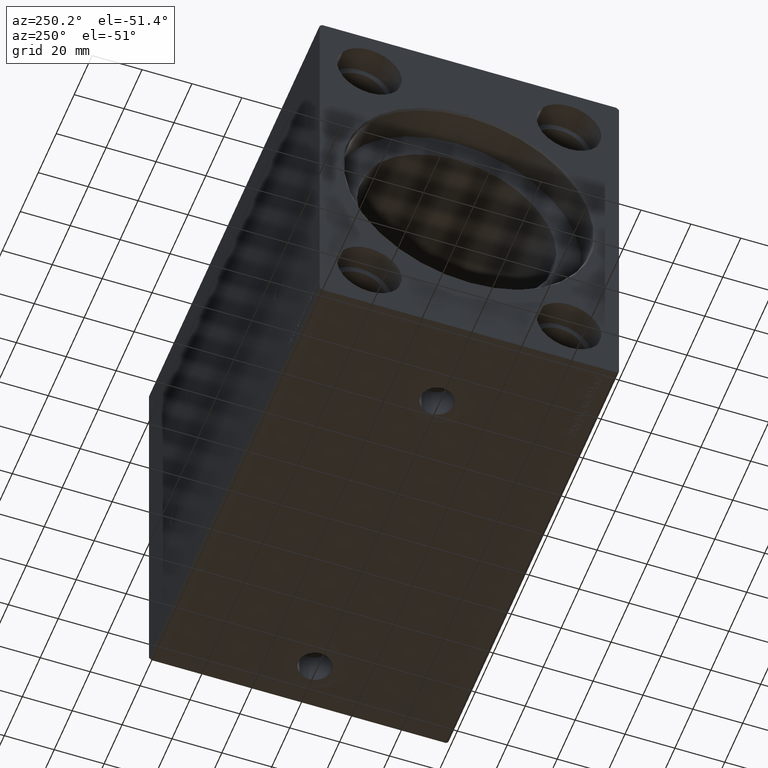
[diagram: clean part render]
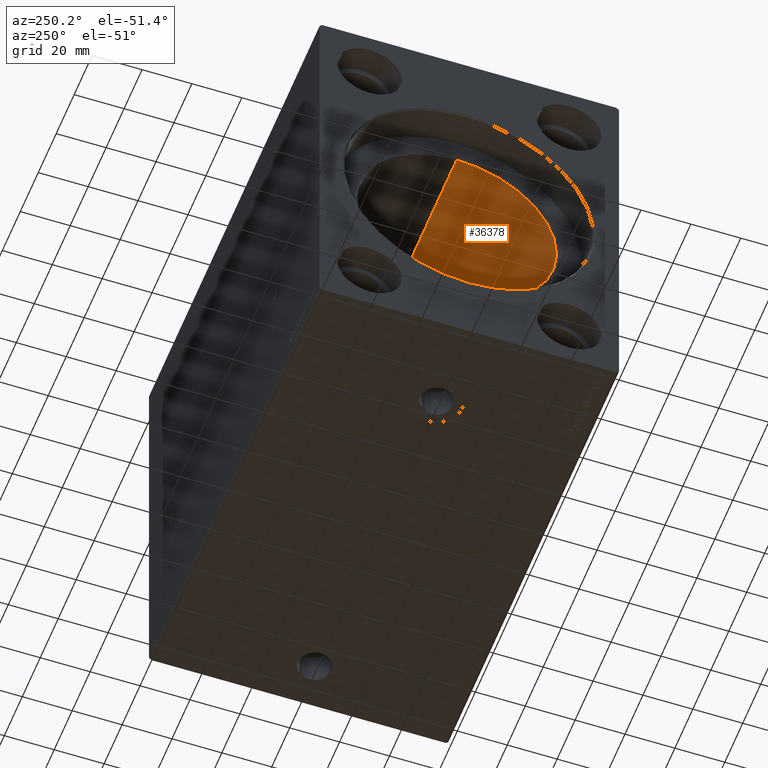
[diagram: same view with one face highlighted and labeled with its STEP entity id]
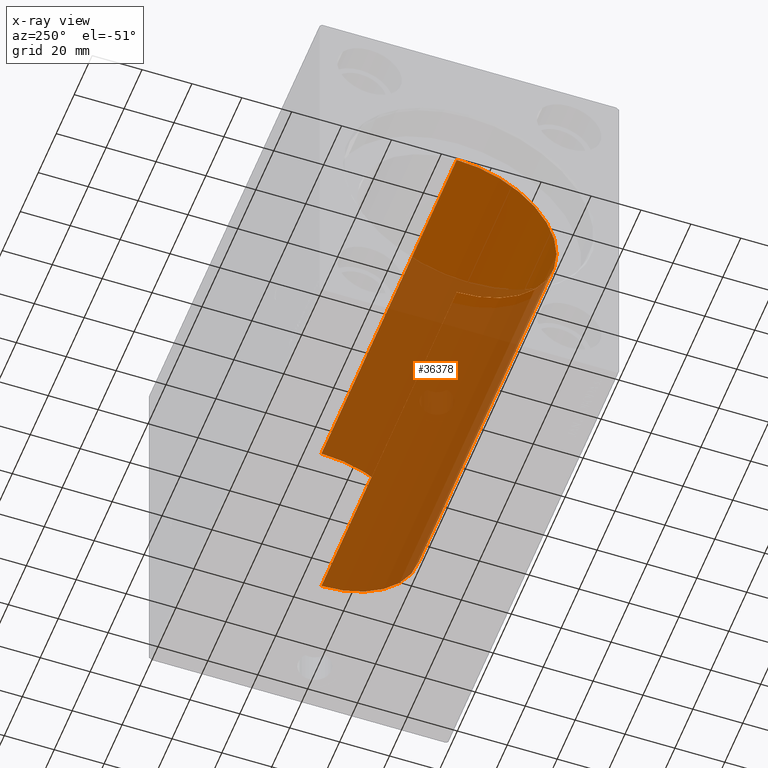
[diagram: x-ray of the same camera — body ghosted, the highlighted face saturated]
A machine part, auxiliary view. The second image highlights one B-rep face of the part: STEP entity #36378.
The next image is the same camera in x-ray: the body ghosted, the highlighted face saturated — about 74% of this face is hidden behind the body in this view.
In plain terms, the highlighted cylindrical surface (partial cylindrical patch) has radius 40 mm, axis along (-1, -0, -0).
Its self-contained STEP definition (entity closure, byte-faithful):
#196 = DIRECTION ( 'NONE',  ( -1.000000000000000000, 0.000000000000000000, 0.000000000000000000 ) ) ;
#1993 = CIRCLE ( 'NONE', #19187, 40.00000000000000000 ) ;
#2711 = VECTOR ( 'NONE', #9904, 1000.000000000000000 ) ;
#4026 = CARTESIAN_POINT ( 'NONE',  ( 164.6999999999999886, 0.000000000000000000, 0.000000000000000000 ) ) ;
#8079 = DIRECTION ( 'NONE',  ( 0.000000000000000000, 0.000000000000000000, 1.000000000000000000 ) ) ;
#9516 = VERTEX_POINT ( 'NONE', #37517 ) ;
#9904 = DIRECTION ( 'NONE',  ( -1.000000000000000000, -0.000000000000000000, -0.000000000000000000 ) ) ;
#9996 = DIRECTION ( 'NONE',  ( 0.000000000000000000, 0.000000000000000000, 1.000000000000000000 ) ) ;
#11203 = ORIENTED_EDGE ( 'NONE', *, *, #12126, .F. ) ;
#12126 = EDGE_CURVE ( 'NONE', #17354, #38976, #41742, .T. ) ;
#12310 = DIRECTION ( 'NONE',  ( -1.000000000000000000, -0.000000000000000000, -0.000000000000000000 ) ) ;
#12432 = AXIS2_PLACEMENT_3D ( 'NONE', #39711, #196, #8079 ) ;
#13496 = FACE_OUTER_BOUND ( 'NONE', #39806, .T. ) ;
#14029 = ORIENTED_EDGE ( 'NONE', *, *, #24782, .T. ) ;
#14064 = CARTESIAN_POINT ( 'NONE',  ( 14.00000000000001243, 0.000000000000000000, 0.000000000000000000 ) ) ;
#16377 = CARTESIAN_POINT ( 'NONE',  ( 164.6999999999999886, 0.000000000000000000, 40.00000000000000000 ) ) ;
#16772 = LINE ( 'NONE', #33544, #2711 ) ;
#17354 = VERTEX_POINT ( 'NONE', #16377 ) ;
#19187 = AXIS2_PLACEMENT_3D ( 'NONE', #14064, #30203, #9996 ) ;
#20366 = CYLINDRICAL_SURFACE ( 'NONE', #40275, 40.00000000000000000 ) ;
#24263 = ORIENTED_EDGE ( 'NONE', *, *, #33842, .F. ) ;
#24782 = EDGE_CURVE ( 'NONE', #26196, #9516, #16772, .T. ) ;
#26196 = VERTEX_POINT ( 'NONE', #28046 ) ;
#27468 = CARTESIAN_POINT ( 'NONE',  ( 14.00000000000001243, 0.000000000000000000, 40.00000000000000000 ) ) ;
#28046 = CARTESIAN_POINT ( 'NONE',  ( 164.6999999999999886, 4.898587196589412237E-15, -40.00000000000000000 ) ) ;
#30203 = DIRECTION ( 'NONE',  ( -1.000000000000000000, 0.000000000000000000, 0.000000000000000000 ) ) ;
#30265 = DIRECTION ( 'NONE',  ( 0.000000000000000000, 0.000000000000000000, 1.000000000000000000 ) ) ;
#33544 = CARTESIAN_POINT ( 'NONE',  ( 164.6999999999999886, 4.898587196589412237E-15, -40.00000000000000000 ) ) ;
#33842 = EDGE_CURVE ( 'NONE', #26196, #17354, #39219, .T. ) ;
#35018 = ORIENTED_EDGE ( 'NONE', *, *, #42429, .T. ) ;
#35312 = CARTESIAN_POINT ( 'NONE',  ( 164.6999999999999886, 0.000000000000000000, 40.00000000000000000 ) ) ;
#36378 = ADVANCED_FACE ( 'NONE', ( #13496 ), #20366, .F. ) ;
#37517 = CARTESIAN_POINT ( 'NONE',  ( 14.00000000000001243, 4.898587196589412237E-15, -40.00000000000000000 ) ) ;
#38976 = VERTEX_POINT ( 'NONE', #27468 ) ;
#39219 = CIRCLE ( 'NONE', #12432, 40.00000000000000000 ) ;
#39711 = CARTESIAN_POINT ( 'NONE',  ( 164.6999999999999886, 0.000000000000000000, 0.000000000000000000 ) ) ;
#39806 = EDGE_LOOP ( 'NONE', ( #24263, #14029, #35018, #11203 ) ) ;
#40131 = DIRECTION ( 'NONE',  ( -1.000000000000000000, -0.000000000000000000, -0.000000000000000000 ) ) ;
#40275 = AXIS2_PLACEMENT_3D ( 'NONE', #4026, #40131, #30265 ) ;
#41742 = LINE ( 'NONE', #35312, #42362 ) ;
#42362 = VECTOR ( 'NONE', #12310, 1000.000000000000000 ) ;
#42429 = EDGE_CURVE ( 'NONE', #9516, #38976, #1993, .T. ) ;